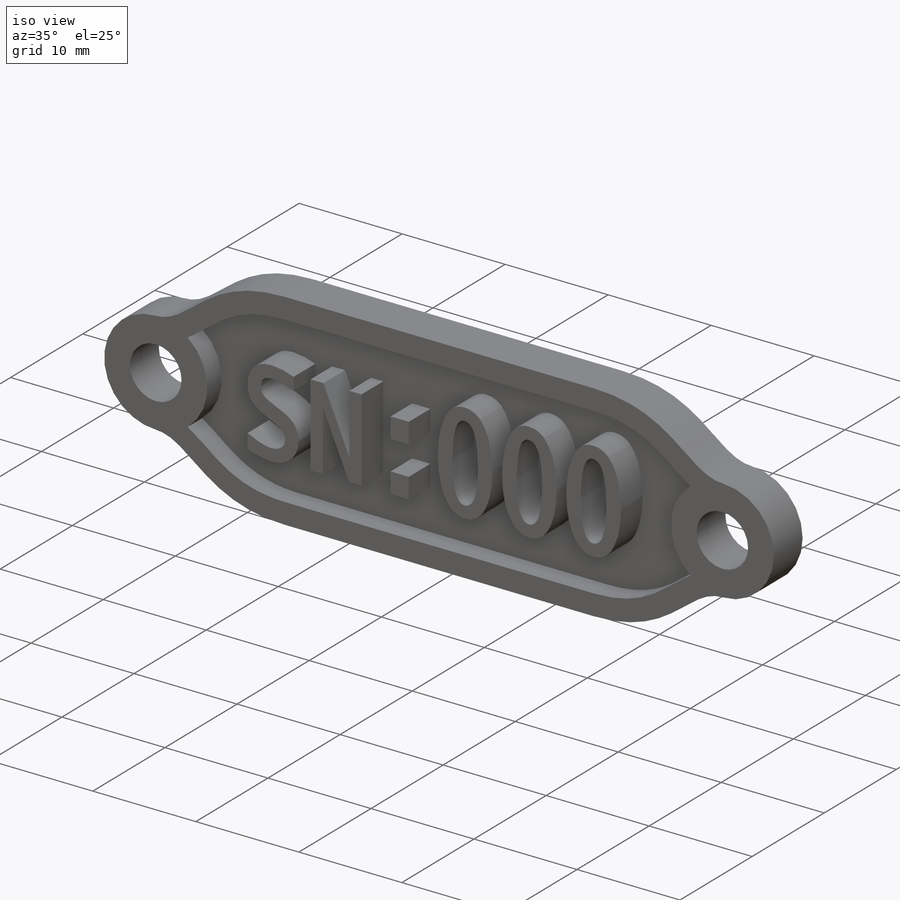
[diagram: iso view]
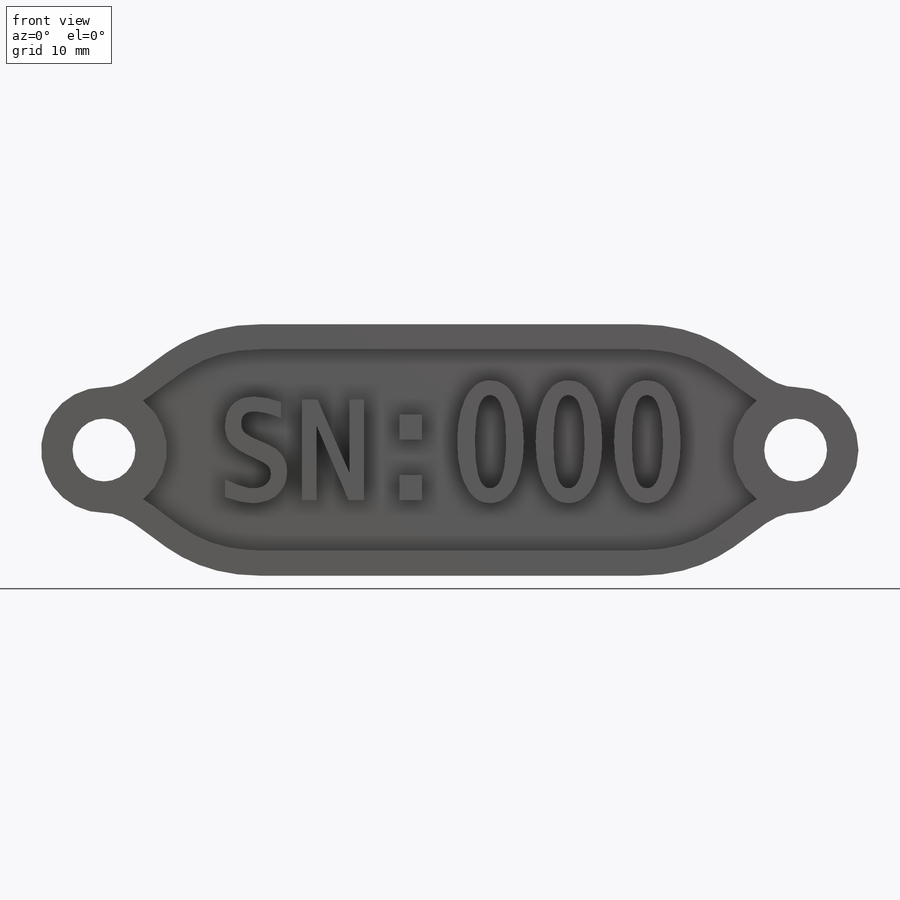
[diagram: front view]
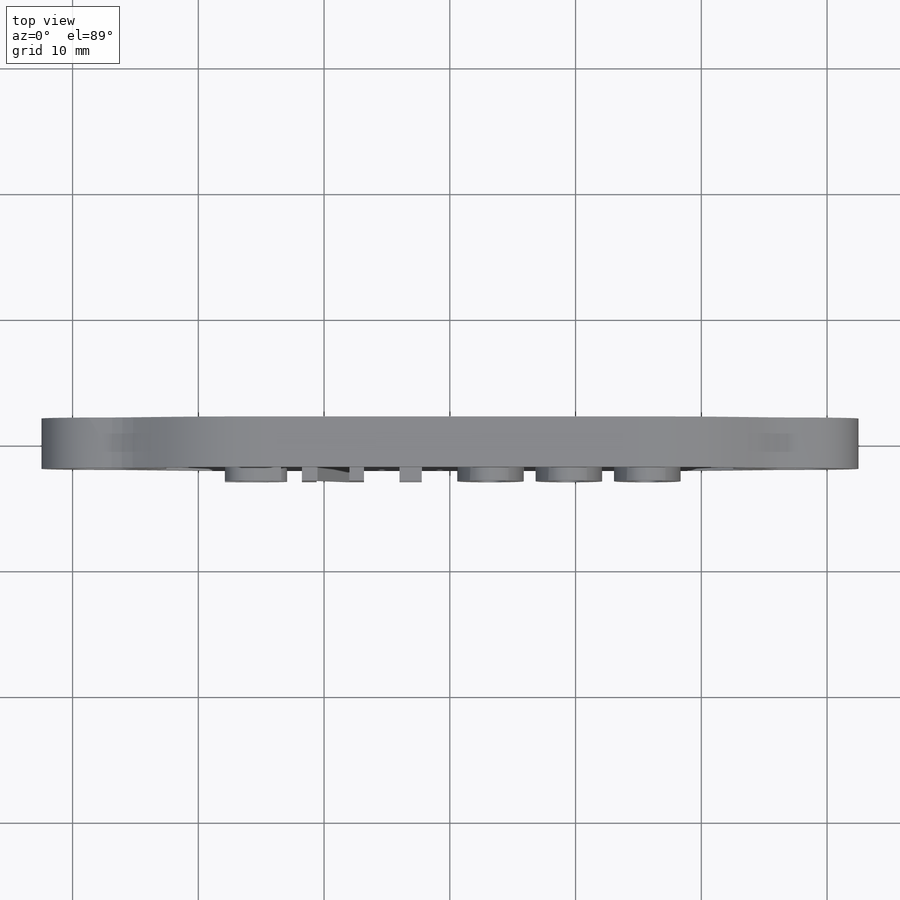
[diagram: top view]
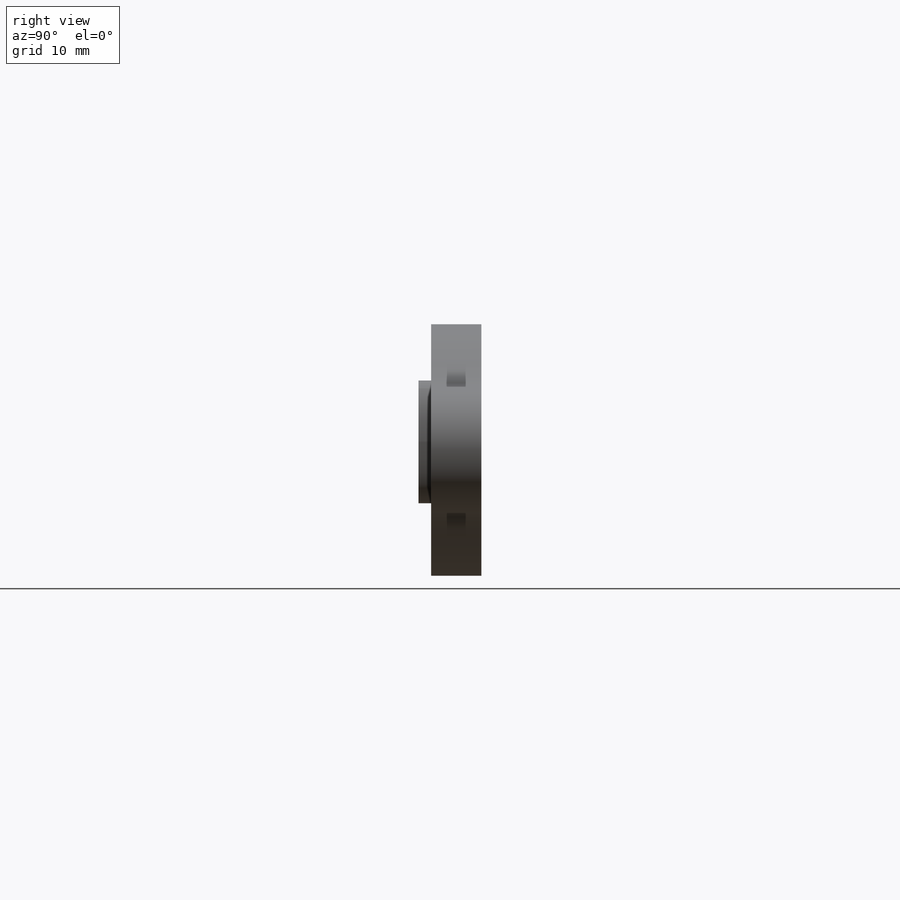
[diagram: right view]
SOLIDWORKS PART (.sldprt)
format: sldprt  version: not decoded by parser v0  size: 24,919,552 bytes
history: native  units: mm
features: sketch x3, extrude x3, material x1 + 1 further entry (+14 scaffold rows collapsed)
feature tree (22):
  scaffold x14  (default folders/planes/origin — collapsed)
  material  "Material <not specified>"
  "Design Table"
  sketch  "Sketch1"  dims[c1.D4=10.0mm c1.D7=5.0mm c1.D9=2.0mm c1.D1=55.0mm c1.D2=20.0mm c1.D3=30.0mm c1.D5=40.0mm c2.D5=40.0mm c2.D6=4.0mm c2.D8=1.5mm c2.D3=30.0mm c3.D8=2.0mm]
  extrude  "Boss-Extrude1"  Depth=2mm
  sketch  "Sketch4"  dims[D1=2.0mm D2=0.0mm]
  extrude  "Boss-Extrude3"  Depth=2mm
  sketch  "Sketch2"
  extrude  "Boss-Extrude2"  Depth=3mm
decode coverage: 5 of 6 modeling features carry decoded parameters; 1 rows unclassified (native names shown)
note: suppression state not decoded; provenance and decode notes live in map.json
